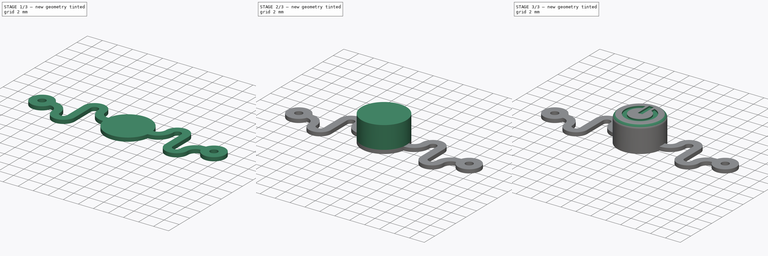
[diagram: build sequence overview — one tinted view per stage of 3, left to right]
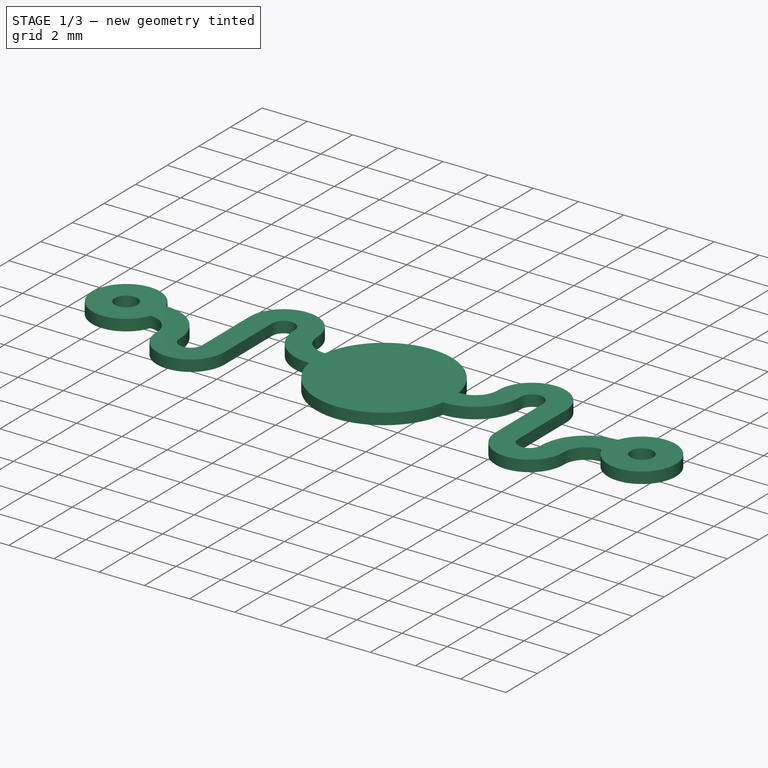
[diagram: stage 1 of 3 — iso view after this stage's code; geometry added in this stage tinted green]
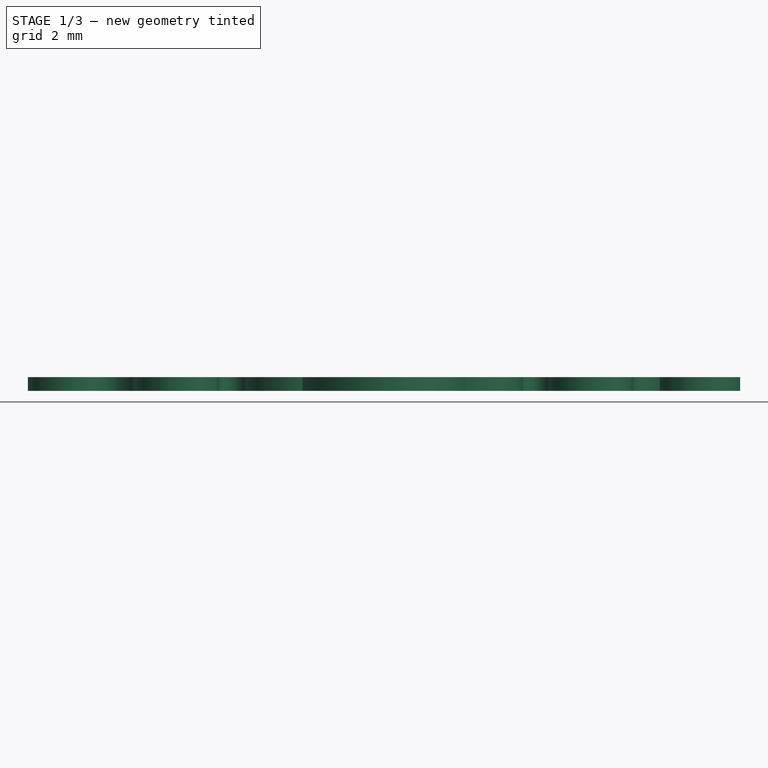
[diagram: stage 1 of 3 — front view after this stage's code; geometry added in this stage tinted green]
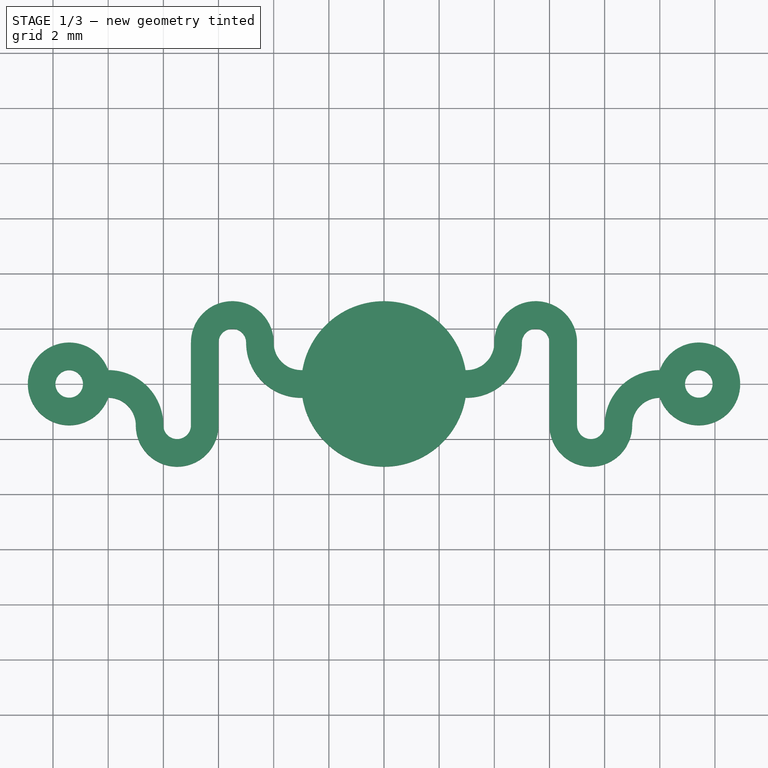
[diagram: stage 1 of 3 — top view after this stage's code; geometry added in this stage tinted green]
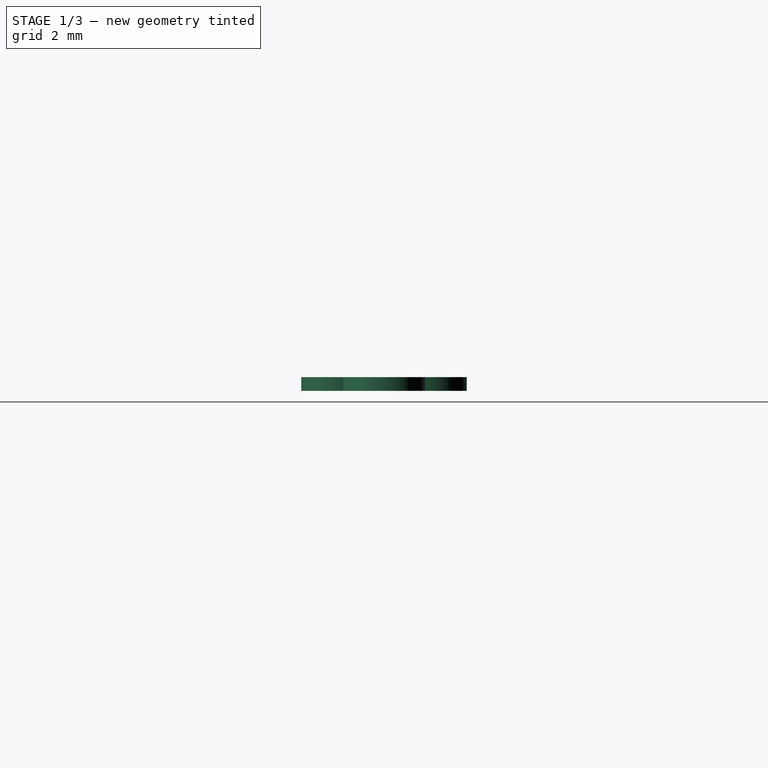
[diagram: stage 1 of 3 — right view after this stage's code; geometry added in this stage tinted green]
FCSTD DOCUMENT  (FreeCAD 0.17R10476 (Git))
Label: EPIC_button
License: All rights reserved
LicenseURL: http://en.wikipedia.org/wiki/All_rights_reserved
objects: Sketcher::SketchObject×4, PartDesign::Pad×3, PartDesign::Fillet×1, PartDesign::Pocket×1, PartDesign::Body×1
note: 14 computed .brp shape members not serialized (recipe doc carries the construction recipe); baked Part::Feature solids carry a one-line shape summary decoded from their .brp

FEATURE [Sketcher::SketchObject] Sketch
  MapMode = 5
  Support = -> [XY_Plane]
  sketch-geometry (25):
    g0: Circle [constr] CenterX=0 CenterY=0 CenterZ=0 NormalX=0 NormalY=0 NormalZ=1 Radius=3
    g1: LineSegment StartX=2.95804 StartY=0.5 StartZ=0 EndX=3 EndY=0.5 EndZ=0
    g2: LineSegment StartX=2.95804 StartY=-0.5 StartZ=0 EndX=3 EndY=-0.5 EndZ=0
    g3: GeomPoint [constr] X=3 Y=0 Z=0
    g4: LineSegment [constr] StartX=3 StartY=0 StartZ=0 EndX=2.95804 EndY=0.5 EndZ=0
    g5: LineSegment [constr] StartX=3 StartY=0 StartZ=0 EndX=2.95804 EndY=-0.5 EndZ=0
    g6: ArcOfCircle CenterX=3 CenterY=1.5 CenterZ=0 NormalX=0 NormalY=0 NormalZ=1 Radius=1 StartAngle=4.71239 EndAngle=6.28319
    g7: ArcOfCircle CenterX=3 CenterY=1.5 CenterZ=0 NormalX=0 NormalY=0 NormalZ=1 Radius=2 StartAngle=4.71239 EndAngle=6.28319
    g8: ArcOfCircle CenterX=5.5 CenterY=1.5 CenterZ=0 NormalX=0 NormalY=0 NormalZ=1 Radius=0.5 StartAngle=0 EndAngle=3.14159
    g9: ArcOfCircle CenterX=5.5 CenterY=1.5 CenterZ=0 NormalX=0 NormalY=0 NormalZ=1 Radius=1.5 StartAngle=0 EndAngle=3.14159
    g10: GeomPoint [constr] X=0 Y=3 Z=0
    g11: GeomPoint [constr] X=5.5 Y=3 Z=0
    g12: LineSegment StartX=6 StartY=1.5 StartZ=0 EndX=6 EndY=-1.5 EndZ=0
    g13: LineSegment StartX=7 StartY=1.5 StartZ=0 EndX=7 EndY=-1.5 EndZ=0
    g14: ArcOfCircle CenterX=7.5 CenterY=-1.5 CenterZ=0 NormalX=0 NormalY=0 NormalZ=1 Radius=0.5 StartAngle=3.14159 EndAngle=6.28319
    g15: ArcOfCircle CenterX=7.5 CenterY=-1.5 CenterZ=0 NormalX=0 NormalY=0 NormalZ=1 Radius=1.5 StartAngle=3.14159 EndAngle=6.28319
    g16: GeomPoint [constr] X=0 Y=-3 Z=0
    g17: GeomPoint [constr] X=7.5 Y=-3 Z=0
    g18: ArcOfCircle CenterX=10 CenterY=-1.5 CenterZ=0 NormalX=0 NormalY=0 NormalZ=1 Radius=1 StartAngle=1.5708 EndAngle=3.14159
    g19: ArcOfCircle CenterX=10 CenterY=-1.5 CenterZ=0 NormalX=0 NormalY=0 NormalZ=1 Radius=2 StartAngle=1.5708 EndAngle=3.14159
    g20: ArcOfCircle CenterX=11.4142 CenterY=0 CenterZ=0 NormalX=0 NormalY=0 NormalZ=1 Radius=1.5 StartAngle=3.48143 EndAngle=9.08494
    g21: Circle CenterX=11.4142 CenterY=0 CenterZ=0 NormalX=0 NormalY=0 NormalZ=1 Radius=0.5
    g22: ArcOfCircle CenterX=0 CenterY=0 CenterZ=0 NormalX=0 NormalY=0 NormalZ=1 Radius=3 StartAngle=0.167448 EndAngle=1.5708
    g23: ArcOfCircle CenterX=0 CenterY=0 CenterZ=0 NormalX=0 NormalY=0 NormalZ=1 Radius=3 StartAngle=4.71239 EndAngle=6.11574
    g24: LineSegment StartX=0 StartY=-3 StartZ=0 EndX=0 EndY=3 EndZ=0
  constraints (71):
    c: Coincident(g0,g-1)
    c: Radius(g0) = 3
    c: PointOnObject(g1,g0)
    c: Horizontal(g1)
    c: PointOnObject(g2,g0)
    c: Horizontal(g2)
    c: PointOnObject(g3,g0)
    c: DistanceY(g3,g-1) = 0
    c: Coincident(g4,g3)
    c: Coincident(g4,g1)
    c: Coincident(g5,g3)
    c: Coincident(g5,g2)
    c: Equal(g5,g4)
    c: Equal(g2,g1)
    c: DistanceY(g2,g1) = 1
    c: Coincident(g6,g1)
    c: Coincident(g7,g2)
    c: Tangent(g7,g2)
    c: DistanceX(g6,g7) = 1
    c: Tangent(g1,g6)
    c: Coincident(g9,g8)
    c: DistanceX(g8,g8) = 1
    c: PointOnObject(g10,g0)
    c: DistanceX(g-1,g10) = 0
    c: PointOnObject(g11,g9)
    c: DistanceX(g8,g11) = 0
    c: DistanceY(g10,g11) = 0
    c: DistanceX(g3,g6) = 0
    c: Coincident(g9,g6)
    c: Coincident(g8,g7)
    c: Tangent(g6,g9)
    c: Tangent(g7,g8)
    c: DistanceY(g9,g8) = 0
    c: DistanceY(g8,g8) = 0
    c: DistanceY(g8,g7) = 0
    c: Coincident(g12,g8)
    c: Vertical(g12)
    c: Coincident(g13,g9)
    c: Vertical(g13)
    c: Coincident(g14,g13)
    c: Coincident(g15,g14)
    c: Coincident(g15,g12)
    c: PointOnObject(g16,g0)
    c: DistanceX(g16,g-1) = 0
    c: PointOnObject(g17,g15)
    c: DistanceX(g14,g17) = 0
    c: DistanceY(g17,g16) = 0
    c: Tangent(g15,g12)
    c: DistanceX(g13,g14) = 1
    c: DistanceY(g14,g14) = 0
    c: DistanceY(g14,g15) = 0
    c: Coincident(g18,g15)
    c: Coincident(g19,g18)
    c: Coincident(g19,g14)
    c: DistanceY(g18,g15) = 0
    c: DistanceX(g18,g18) = 0
    c: DistanceX(g18,g19) = 0
    c: DistanceY(g1,g19) = 0
    c: Coincident(g20,g19)
    c: Coincident(g20,g18)
    c: Radius(g20) = 1.5
    c: Coincident(g21,g20)
    c: Radius(g21) = 0.5
    c: Coincident(g22,g-1)
    c: Coincident(g22,g1)
    c: Coincident(g22,g10)
    c: Coincident(g23,g-1)
    c: Coincident(g23,g2)
    c: Coincident(g23,g16)
    c: Coincident(g24,g16)
    c: Coincident(g24,g10)
FEATURE [Sketcher::SketchObject] MirroredSketch
  sketch-geometry (25):
    g0: Circle [constr] CenterX=0 CenterY=0 CenterZ=0 NormalX=0 NormalY=0 NormalZ=1 Radius=3
    g1: LineSegment StartX=-2.95804 StartY=0.5 StartZ=0 EndX=-3 EndY=0.5 EndZ=0
    g2: LineSegment StartX=-2.95804 StartY=-0.5 StartZ=0 EndX=-3 EndY=-0.5 EndZ=0
    g3: GeomPoint [constr] X=-3 Y=0 Z=0
    g4: LineSegment [constr] StartX=-3 StartY=0 StartZ=0 EndX=-2.95804 EndY=0.5 EndZ=0
    g5: LineSegment [constr] StartX=-3 StartY=0 StartZ=0 EndX=-2.95804 EndY=-0.5 EndZ=0
    g6: ArcOfCircle CenterX=-3 CenterY=1.5 CenterZ=0 NormalX=0 NormalY=0 NormalZ=1 Radius=1 StartAngle=3.14159 EndAngle=4.71239
    g7: ArcOfCircle CenterX=-3 CenterY=1.5 CenterZ=0 NormalX=0 NormalY=0 NormalZ=1 Radius=2 StartAngle=3.14159 EndAngle=4.71239
    g8: ArcOfCircle CenterX=-5.5 CenterY=1.5 CenterZ=0 NormalX=0 NormalY=0 NormalZ=1 Radius=0.5 StartAngle=0 EndAngle=3.14159
    g9: ArcOfCircle CenterX=-5.5 CenterY=1.5 CenterZ=0 NormalX=0 NormalY=0 NormalZ=1 Radius=1.5 StartAngle=1.33747e-07 EndAngle=3.14159
    g10: GeomPoint [constr] X=0 Y=3 Z=0
    g11: GeomPoint [constr] X=-5.5 Y=3 Z=0
    g12: LineSegment StartX=-6 StartY=1.5 StartZ=0 EndX=-6 EndY=-1.5 EndZ=0
    g13: LineSegment StartX=-7 StartY=1.5 StartZ=0 EndX=-7 EndY=-1.5 EndZ=0
    g14: ArcOfCircle CenterX=-7.5 CenterY=-1.5 CenterZ=0 NormalX=0 NormalY=0 NormalZ=1 Radius=0.5 StartAngle=3.14159 EndAngle=6.28319
    g15: ArcOfCircle CenterX=-7.5 CenterY=-1.5 CenterZ=0 NormalX=0 NormalY=0 NormalZ=1 Radius=1.5 StartAngle=3.14159 EndAngle=6.28319
    g16: GeomPoint [constr] X=0 Y=-3 Z=0
    g17: GeomPoint [constr] X=-7.5 Y=-3 Z=0
    g18: ArcOfCircle CenterX=-10 CenterY=-1.5 CenterZ=0 NormalX=0 NormalY=0 NormalZ=1 Radius=1 StartAngle=0 EndAngle=1.5708
    g19: ArcOfCircle CenterX=-10 CenterY=-1.5 CenterZ=0 NormalX=0 NormalY=0 NormalZ=1 Radius=2 StartAngle=0 EndAngle=1.5708
    g20: ArcOfCircle CenterX=-11.4142 CenterY=0 CenterZ=0 NormalX=0 NormalY=0 NormalZ=1 Radius=1.5 StartAngle=0.339837 EndAngle=5.94335
    g21: Circle CenterX=-11.4142 CenterY=0 CenterZ=0 NormalX=0 NormalY=0 NormalZ=1 Radius=0.5
    g22: ArcOfCircle CenterX=0 CenterY=0 CenterZ=0 NormalX=0 NormalY=0 NormalZ=1 Radius=3 StartAngle=1.5708 EndAngle=2.97414
    g23: ArcOfCircle CenterX=0 CenterY=0 CenterZ=0 NormalX=0 NormalY=0 NormalZ=1 Radius=3 StartAngle=3.30904 EndAngle=4.71239
    g24: LineSegment StartX=0 StartY=-3 StartZ=0 EndX=0 EndY=3 EndZ=0
  constraints (47):
    c: Radius(g0) = 3
    c: PointOnObject(g1,g0)
    c: Horizontal(g1)
    c: PointOnObject(g2,g0)
    c: Horizontal(g2)
    c: PointOnObject(g3,g0)
    c: Coincident(g4,g3)
    c: Coincident(g4,g1)
    c: Coincident(g5,g3)
    c: Coincident(g5,g2)
    c: Equal(g5,g4)
    c: Equal(g2,g1)
    c: Coincident(g6,g1)
    c: Coincident(g7,g2)
    c: Tangent(g7,g2)
    c: Tangent(g1,g6)
    c: Coincident(g9,g8)
    c: PointOnObject(g10,g0)
    c: PointOnObject(g11,g9)
    c: Coincident(g9,g6)
    c: Coincident(g8,g7)
    c: Tangent(g6,g9)
    c: Tangent(g7,g8)
    c: Coincident(g12,g8)
    c: Vertical(g12)
    c: Coincident(g13,g9)
    c: Vertical(g13)
    c: Coincident(g14,g13)
    c: Coincident(g15,g14)
    c: Coincident(g15,g12)
    c: PointOnObject(g16,g0)
    c: PointOnObject(g17,g15)
    c: Tangent(g15,g12)
    c: Coincident(g18,g15)
    c: Coincident(g19,g18)
    c: Coincident(g19,g14)
    c: Coincident(g20,g19)
    c: Coincident(g20,g18)
    c: Radius(g20) = 1.5
    c: Coincident(g21,g20)
    c: Radius(g21) = 0.5
    c: Coincident(g22,g1)
    c: Coincident(g22,g10)
    c: Coincident(g23,g2)
    c: Coincident(g23,g16)
    c: Coincident(g24,g16)
    c: Coincident(g24,g10)
FEATURE [PartDesign::Pad] Pad
  Length = 0.5
  Length2 = 100
  Profile = -> MirroredSketch
  Type = 0
FEATURE [PartDesign::Pad] Pad001
  BaseFeature = -> Pad
  Length = 0.5
  Length2 = 100
  Profile = -> Sketch
  Type = 0
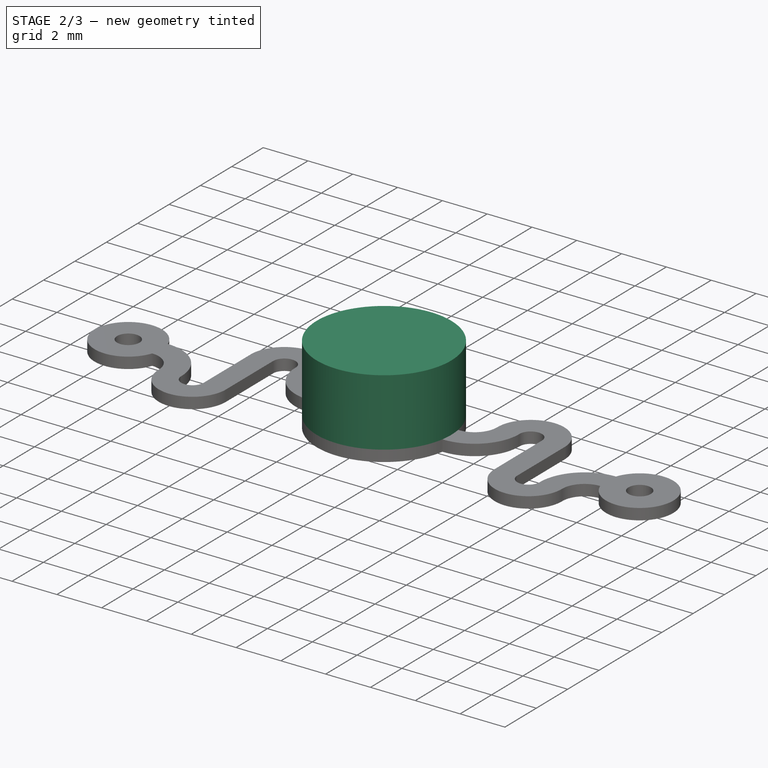
[diagram: stage 2 of 3 — iso view after this stage's code; geometry added in this stage tinted green]
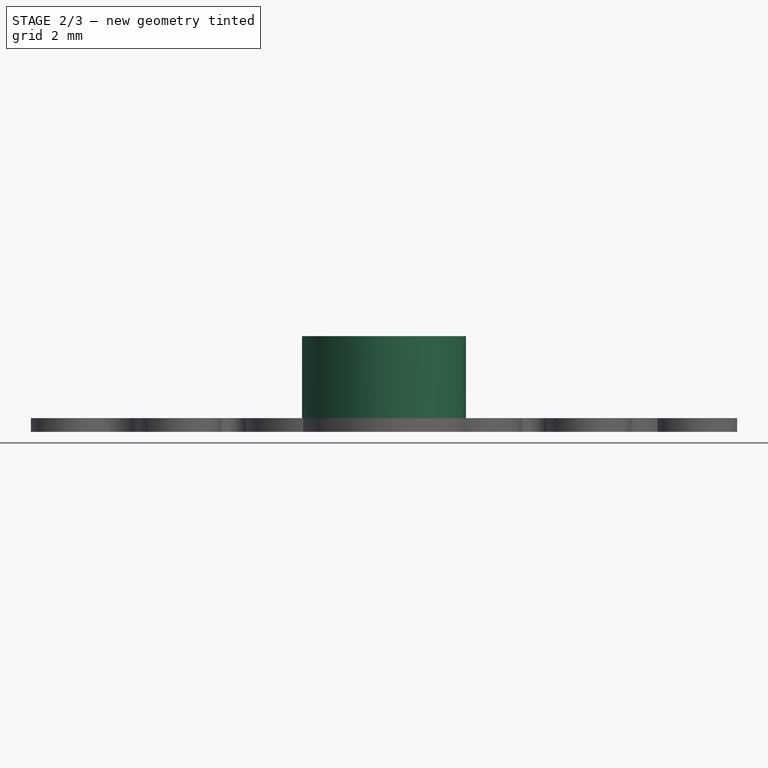
[diagram: stage 2 of 3 — front view after this stage's code; geometry added in this stage tinted green]
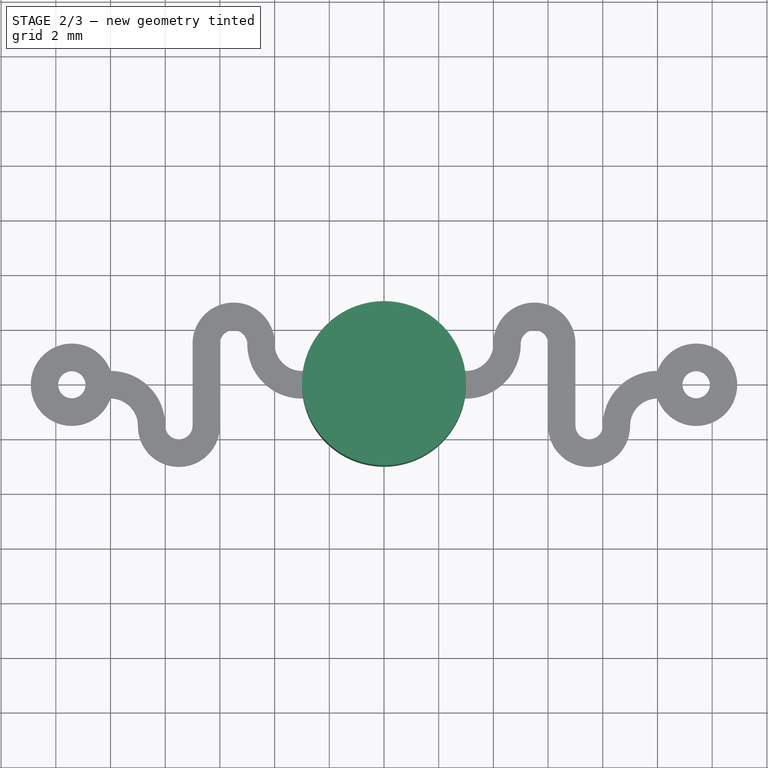
[diagram: stage 2 of 3 — top view after this stage's code; geometry added in this stage tinted green]
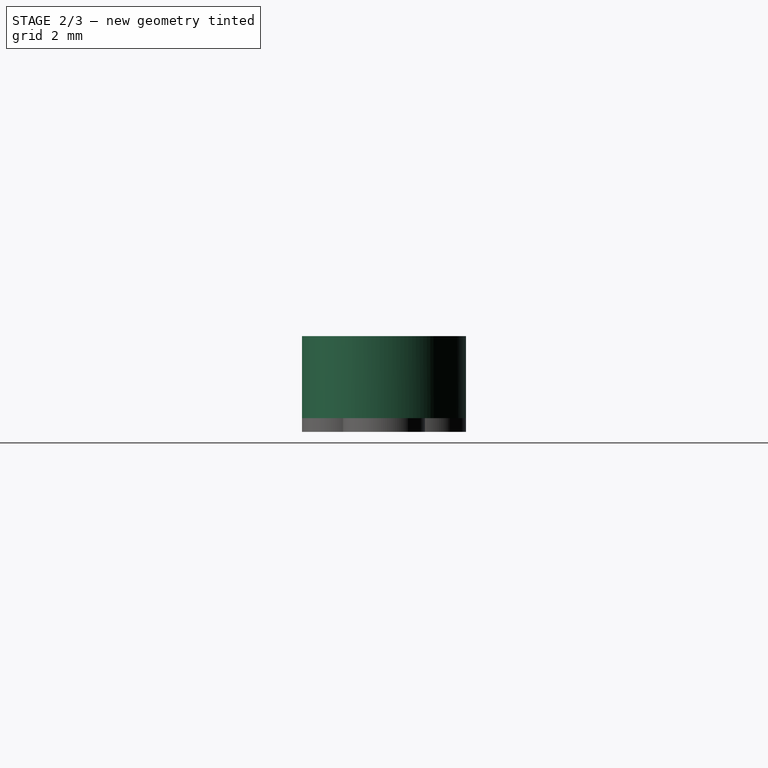
[diagram: stage 2 of 3 — right view after this stage's code; geometry added in this stage tinted green]
FEATURE [Sketcher::SketchObject] Sketch001
  ExternalGeometry = -> [Pad001]
  MapMode = 5
  Placement = pos=(0,0,0.5) rot=(0,0,1;0rad)
  Support = -> [Pad001]
  sketch-geometry (1):
    g0: Circle CenterX=0 CenterY=0 CenterZ=0 NormalX=0 NormalY=0 NormalZ=1 Radius=3
  constraints (2):
    c: Coincident(g0,g-1)
    c: PointOnObject(g-3,g0)
FEATURE [PartDesign::Pad] Pad002
  BaseFeature = -> Pad001
  Length = 3
  Length2 = 100
  Profile = -> Sketch001
  Type = 0
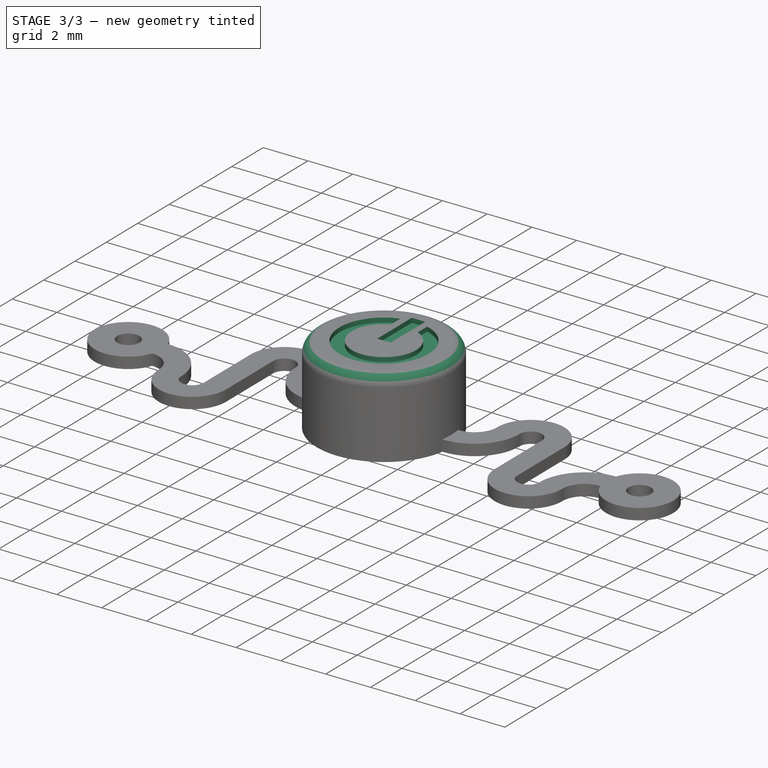
[diagram: stage 3 of 3 — iso view after this stage's code; geometry added in this stage tinted green]
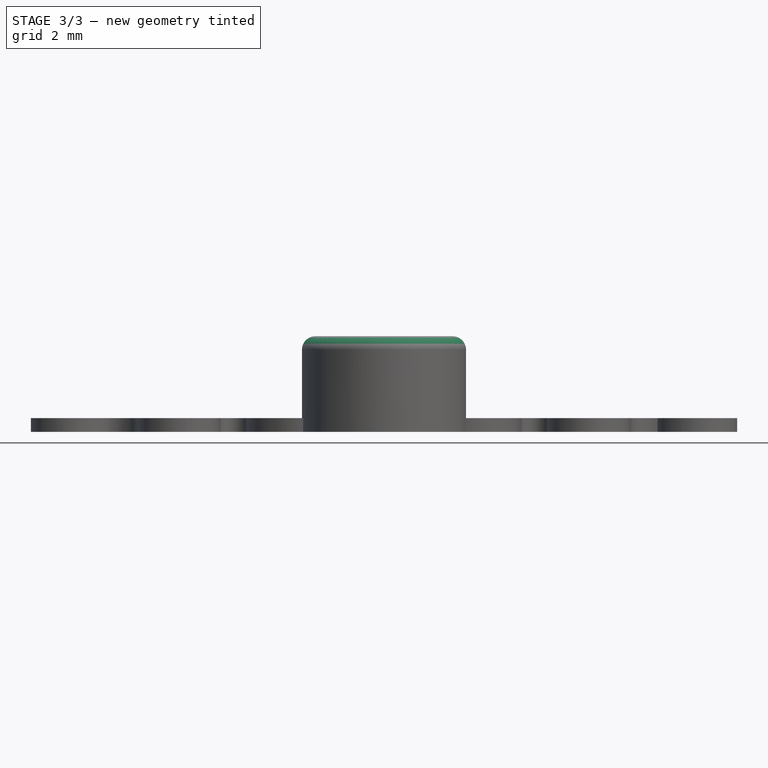
[diagram: stage 3 of 3 — front view after this stage's code; geometry added in this stage tinted green]
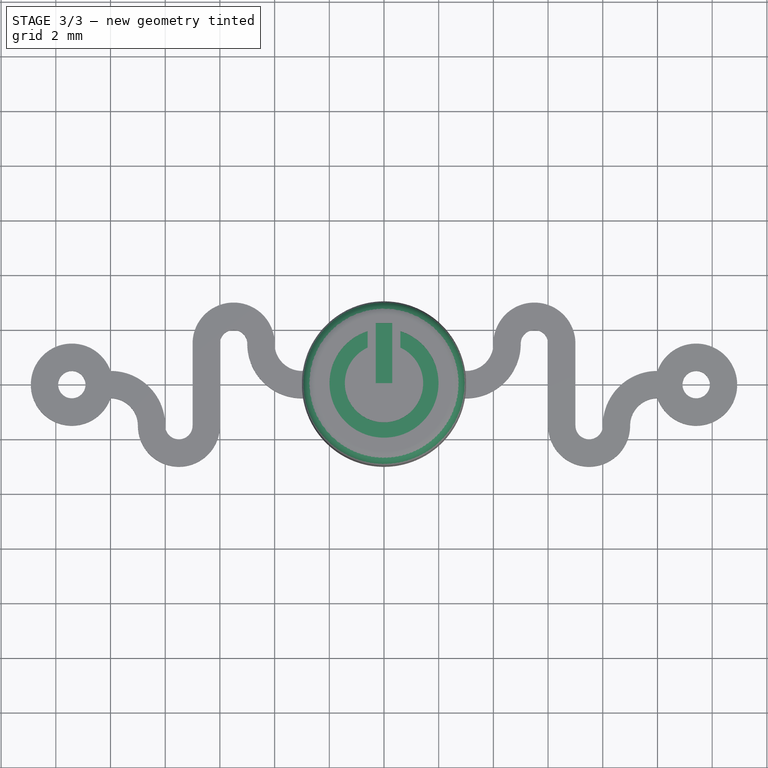
[diagram: stage 3 of 3 — top view after this stage's code; geometry added in this stage tinted green]
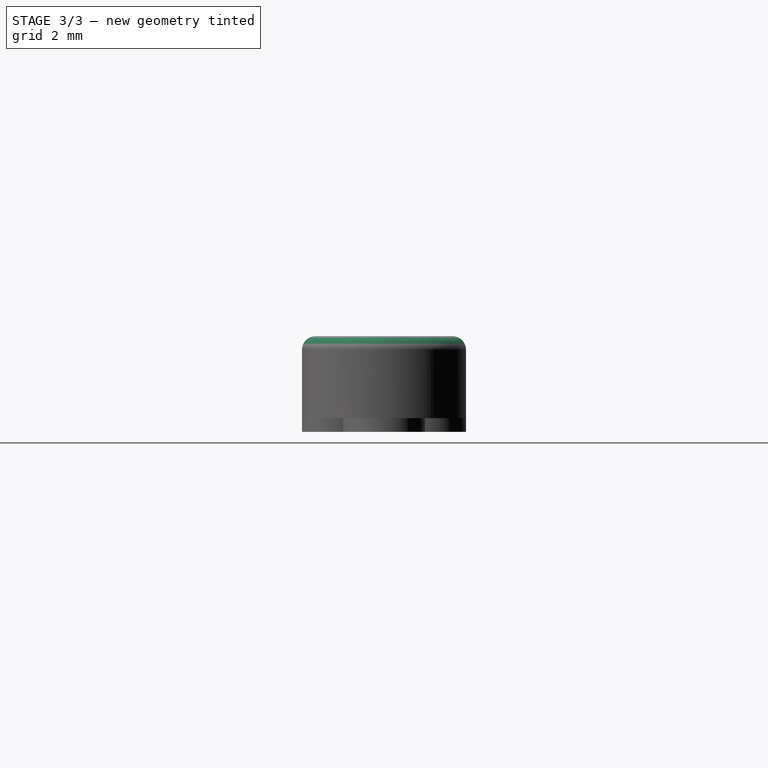
[diagram: stage 3 of 3 — right view after this stage's code; geometry added in this stage tinted green]
FEATURE [PartDesign::Fillet] Fillet
  Base = -> Pad002 [Face24]
  BaseFeature = -> Pad002
  Radius = 0.5
FEATURE [Sketcher::SketchObject] Sketch002
  ExternalGeometry = -> [Fillet]
  MapMode = 5
  Placement = pos=(0,0,3.5) rot=(0,0,1;0rad)
  Support = -> [Fillet]
  sketch-geometry (16):
    g0: ArcOfCircle CenterX=0 CenterY=0 CenterZ=0 NormalX=0 NormalY=0 NormalZ=1 Radius=1.43178 StartAngle=2.0032 EndAngle=7.42157
    g1: ArcOfCircle CenterX=0 CenterY=0 CenterZ=0 NormalX=0 NormalY=0 NormalZ=1 Radius=1.99249 StartAngle=1.87668 EndAngle=7.5481
    g2: LineSegment StartX=-0.3 StartY=0 StartZ=0 EndX=0.3 EndY=0 EndZ=0
    g3: LineSegment StartX=0.3 StartY=0 StartZ=0 EndX=0.3 EndY=2.2 EndZ=0
    g4: LineSegment StartX=0.3 StartY=2.2 StartZ=0 EndX=-0.3 EndY=2.2 EndZ=0
    g5: LineSegment StartX=-0.3 StartY=2.2 StartZ=0 EndX=-0.3 EndY=0 EndZ=0
    g6: LineSegment StartX=0.6 StartY=1.9 StartZ=0 EndX=0.6 EndY=1.3 EndZ=0
    g7: LineSegment StartX=-0.6 StartY=1.9 StartZ=0 EndX=-0.6 EndY=1.3 EndZ=0
    g8: LineSegment [constr] StartX=-0.3 StartY=0 StartZ=0 EndX=0 EndY=0 EndZ=0
    g9: LineSegment [constr] StartX=0 StartY=0 StartZ=0 EndX=0.3 EndY=0 EndZ=0
    g10: LineSegment [constr] StartX=-0.6 StartY=1.9 StartZ=0 EndX=-0.3 EndY=1.9 EndZ=0
    g11: LineSegment [constr] StartX=-0.3 StartY=1.9 StartZ=0 EndX=-0.3 EndY=2.2 EndZ=0
    g12: GeomPoint [constr] X=0 Y=2.5 Z=0
    g13: LineSegment [constr] StartX=0 StartY=2.5 StartZ=0 EndX=-0.3 EndY=2.2 EndZ=0
    g14: LineSegment [constr] StartX=0 StartY=2.5 StartZ=0 EndX=0.3 EndY=2.2 EndZ=0
    g15: LineSegment [constr] StartX=0 StartY=2.2 StartZ=0 EndX=0 EndY=2.5 EndZ=0
  constraints (42):
    c: Coincident(g0,g-1)
    c: Coincident(g1,g-1)
    c: DistanceY(g0,g0) = 0
    c: DistanceY(g1,g1) = 0
    c: DistanceX(g0,g1) = 0
    c: Coincident(g2,g3)
    c: Coincident(g3,g4)
    c: Coincident(g4,g5)
    c: Coincident(g5,g2)
    c: Horizontal(g2)
    c: Horizontal(g4)
    c: Vertical(g3)
    c: Vertical(g5)
    c: PointOnObject(g2,g-1)
    c: Coincident(g6,g1)
    c: Coincident(g6,g0)
    c: Coincident(g7,g1)
    c: Coincident(g7,g0)
    c: Equal(g6,g2)
    c: Coincident(g8,g2)
    c: Coincident(g8,g-1)
    c: Coincident(g9,g-1)
    c: Coincident(g9,g2)
    c: Equal(g8,g9)
    c: Coincident(g10,g1)
    c: PointOnObject(g10,g5)
    c: Horizontal(g10)
    c: Equal(g8,g10)
    c: DistanceX(g2,g2) = 0.6
    c: Coincident(g11,g10)
    c: Coincident(g11,g4)
    c: Equal(g10,g11)
    c: PointOnObject(g12,g-3)
    c: Coincident(g13,g4)
    c: Coincident(g14,g3)
    c: Coincident(g12,g13)
    c: Coincident(g12,g14)
    c: Equal(g14,g13)
    c: PointOnObject(g15,g4)
    c: Coincident(g15,g12)
    c: Vertical(g15)
    c: Equal(g10,g15)
FEATURE [PartDesign::Pocket] Pocket
  BaseFeature = -> Fillet
  Length = 0.2
  Profile = -> Sketch002
  Type = 0
FEATURE [PartDesign::Body] Body
  Group = -> [Sketch,MirroredSketch,Pad,Pad001,Sketch001,Pad002,Fillet,Sketch002,Pocket]
  Origin = -> BodyOrigin
  Tip = -> Pocket
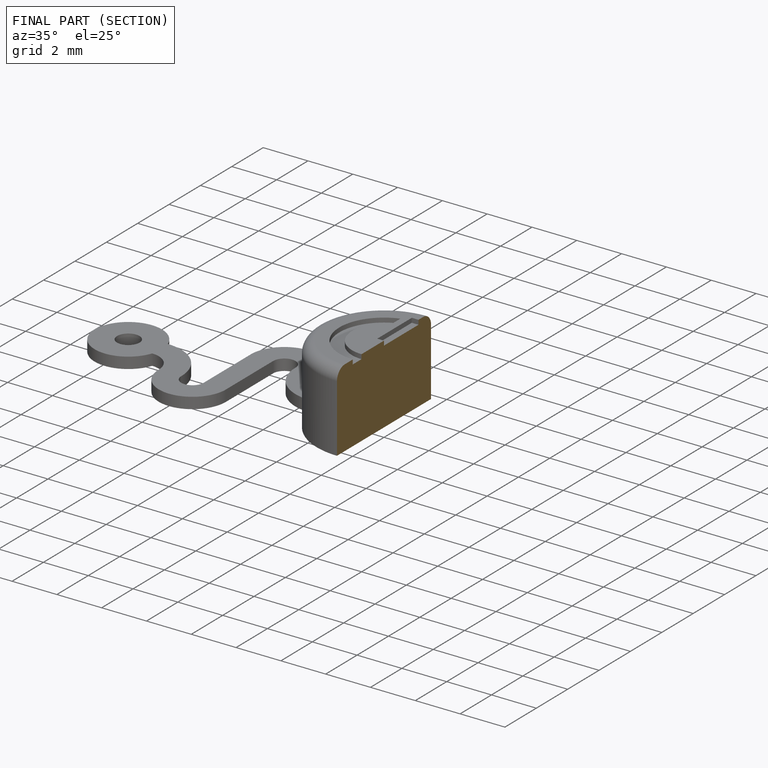
[diagram: finished part — half-section view (interior)]
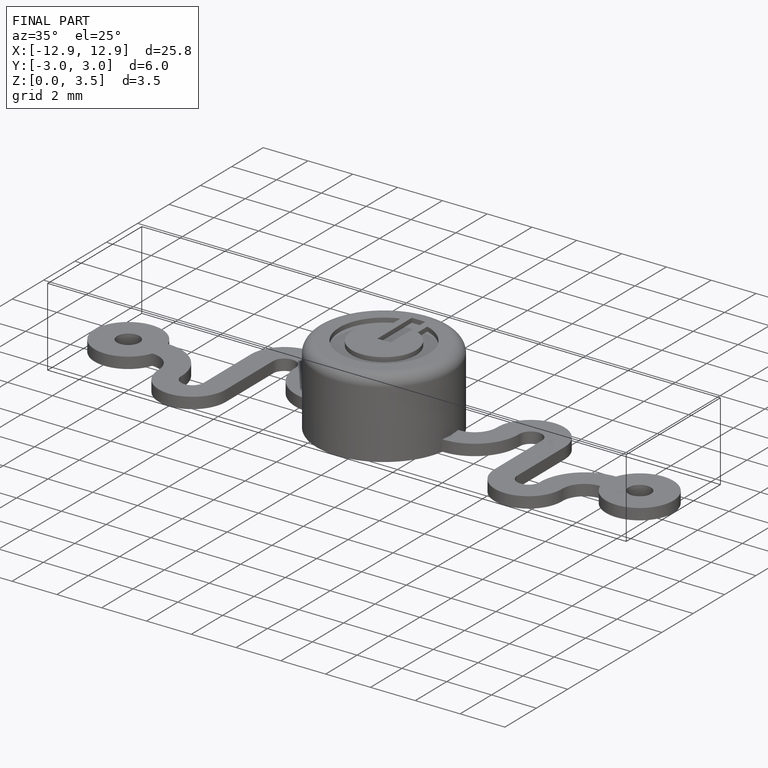
[diagram: finished part — iso view with bounding-box wireframe]
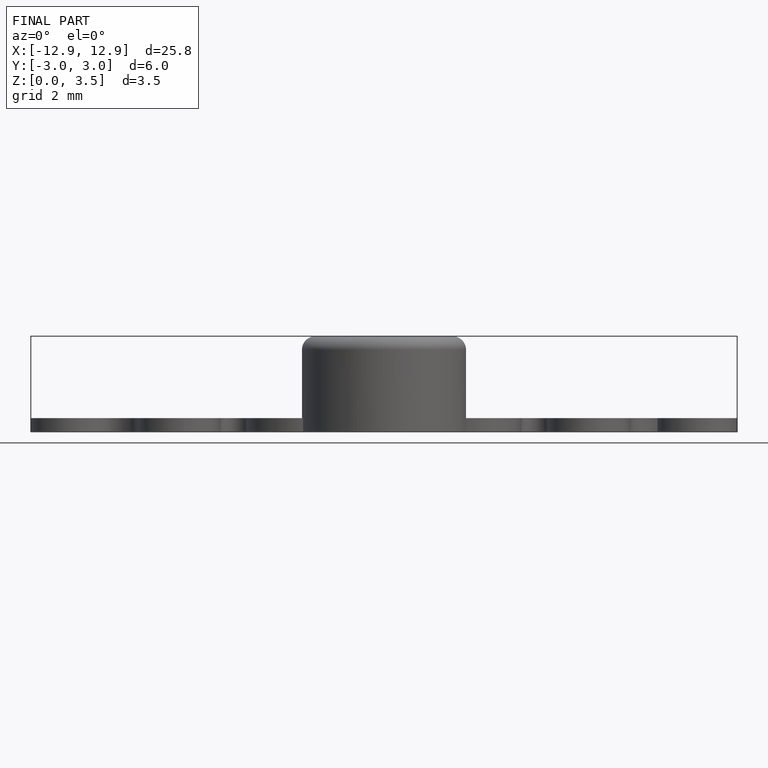
[diagram: finished part — front view with bounding-box wireframe]
